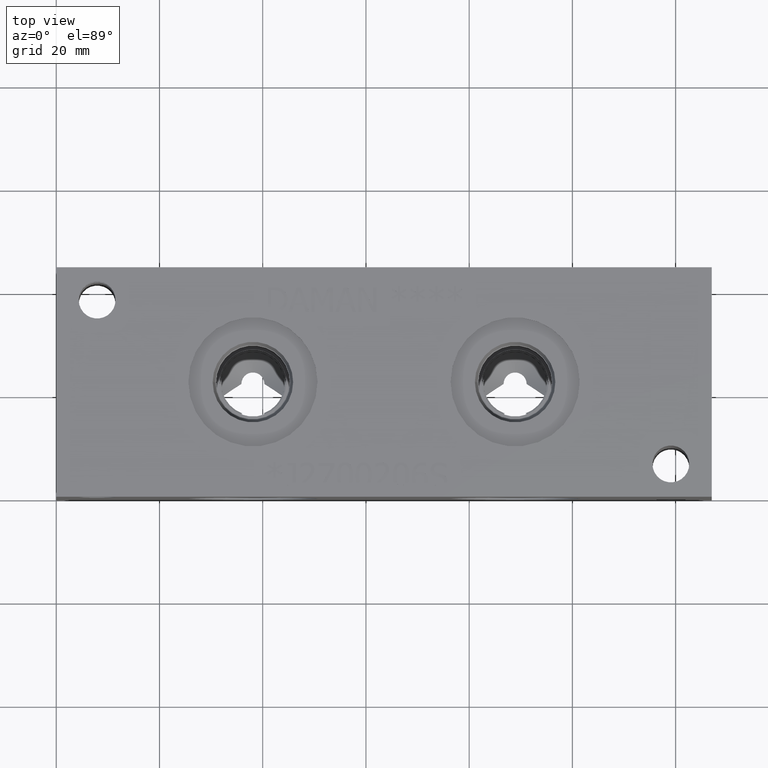
[diagram: clean part render]
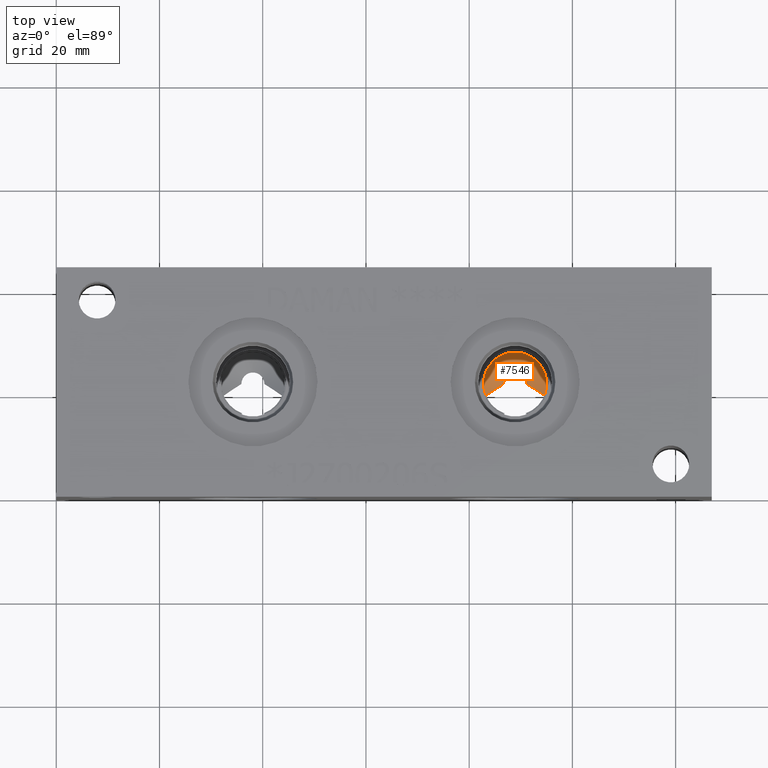
[diagram: same view with one face highlighted and labeled with its STEP entity id]
A machine part, top view. The second image highlights one B-rep face of the part: STEP entity #7546.
In plain terms, the highlighted conical surface has half-angle 60 deg.
Its self-contained STEP definition (entity closure, byte-faithful):
#39=CONICAL_SURFACE('',#7878,3.0734,1.0471975511966);
#124=CIRCLE('',#7866,2.23014814986065);
#129=CIRCLE('',#7879,6.1468);
#501=B_SPLINE_CURVE_WITH_KNOTS('',3,(#12839,#12840,#12841,#12842,#12843,
#12844),.UNSPECIFIED.,.F.,.F.,(4,2,4),(1.87414718132037,2.04134787276827,
2.33296899744945),.UNSPECIFIED.);
#502=B_SPLINE_CURVE_WITH_KNOTS('',3,(#12847,#12848,#12849,#12850,#12851,
#12852,#12853,#12854),.UNSPECIFIED.,.F.,.F.,(4,2,2,4),(2.82308606721862,
2.858139516988,3.0122875361522,3.28336476754226),.UNSPECIFIED.);
#939=FACE_OUTER_BOUND('',#1361,.T.);
#1361=EDGE_LOOP('',(#6326,#6327,#6328,#6329));
#3406=VERTEX_POINT('',#12776);
#3408=VERTEX_POINT('',#12787);
#3416=VERTEX_POINT('',#12838);
#3417=VERTEX_POINT('',#12845);
#4398=EDGE_CURVE('',#3406,#3408,#124,.T.);
#4410=EDGE_CURVE('',#3416,#3408,#501,.T.);
#4411=EDGE_CURVE('',#3416,#3417,#129,.T.);
#4412=EDGE_CURVE('',#3406,#3417,#502,.T.);
#6326=ORIENTED_EDGE('',*,*,#4398,.T.);
#6327=ORIENTED_EDGE('',*,*,#4410,.F.);
#6328=ORIENTED_EDGE('',*,*,#4411,.T.);
#6329=ORIENTED_EDGE('',*,*,#4412,.F.);
#7546=ADVANCED_FACE('',(#939),#39,.F.);
#7866=AXIS2_PLACEMENT_3D('',#12794,#9165,#9166);
#7878=AXIS2_PLACEMENT_3D('',#12837,#9189,#9190);
#7879=AXIS2_PLACEMENT_3D('',#12846,#9191,#9192);
#9165=DIRECTION('center_axis',(0.,0.,-1.));
#9166=DIRECTION('ref_axis',(1.,0.,0.));
#9189=DIRECTION('center_axis',(0.,0.,1.));
#9190=DIRECTION('ref_axis',(6.12323399573677E-17,1.,0.));
#9191=DIRECTION('center_axis',(0.,0.,1.));
#9192=DIRECTION('ref_axis',(1.,0.,0.));
#12776=CARTESIAN_POINT('',(86.6698518497274,22.2249999996829,22.2250000000793));
#12787=CARTESIAN_POINT('',(91.1301481498607,22.225,22.225));
#12794=CARTESIAN_POINT('Origin',(88.9,22.225,22.225));
#12837=CARTESIAN_POINT('Origin',(88.9,22.225,22.7118516826726));
#12838=CARTESIAN_POINT('',(94.6157469329564,19.96372,24.48628));
#12839=CARTESIAN_POINT('Ctrl Pts',(94.6157469329563,19.96372,24.48628));
#12840=CARTESIAN_POINT('Ctrl Pts',(94.1905540346534,20.2535483818715,24.1964516181284));
#12841=CARTESIAN_POINT('Ctrl Pts',(93.7673762120063,20.5398587215644,23.9101412784356));
#12842=CARTESIAN_POINT('Ctrl Pts',(92.6096062074755,21.3114188116199,23.1385811883801));
#12843=CARTESIAN_POINT('Ctrl Pts',(91.8831106560557,21.7902768943586,22.6597231056414));
#12844=CARTESIAN_POINT('Ctrl Pts',(91.1301481498607,22.225,22.225));
#12845=CARTESIAN_POINT('',(83.1842530670437,19.96372,24.48628));
#12846=CARTESIAN_POINT('Origin',(88.9,22.225,24.48628));
#12847=CARTESIAN_POINT('Ctrl Pts',(86.6698518495901,22.2249999996829,22.2250000003171));
#12848=CARTESIAN_POINT('Ctrl Pts',(86.5791913543234,22.1726571383315,22.2773428616685));
#12849=CARTESIAN_POINT('Ctrl Pts',(86.4891140579161,22.1195950521249,22.3304049478751));
#12850=CARTESIAN_POINT('Ctrl Pts',(86.0050671646753,21.8300844634514,22.6199155365486));
#12851=CARTESIAN_POINT('Ctrl Pts',(85.6177165326707,21.5837403960469,22.8662596039531));
#12852=CARTESIAN_POINT('Ctrl Pts',(84.549183595825,20.8895611787416,23.5604388212584));
#12853=CARTESIAN_POINT('Ctrl Pts',(83.869504601172,20.4308146859746,24.0191853140254));
#12854=CARTESIAN_POINT('Ctrl Pts',(83.1842530670437,19.96372,24.48628));